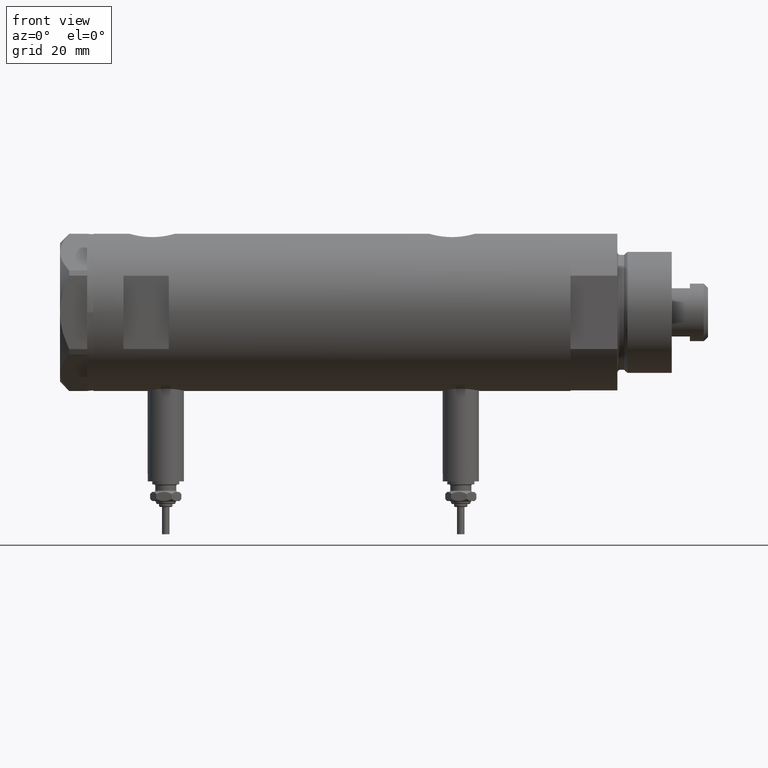
[diagram: clean part render]
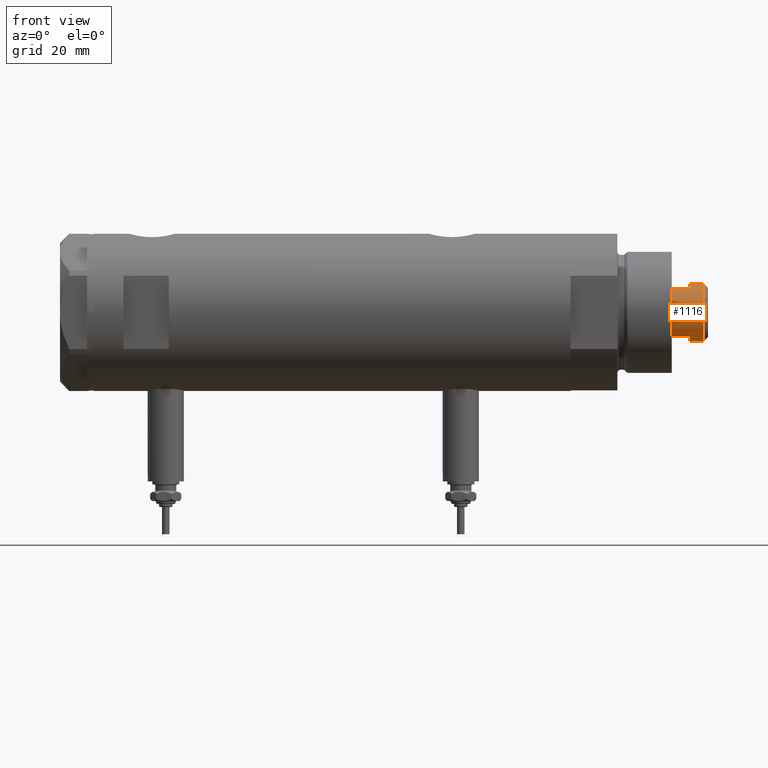
[diagram: same view with one face highlighted and labeled with its STEP entity id]
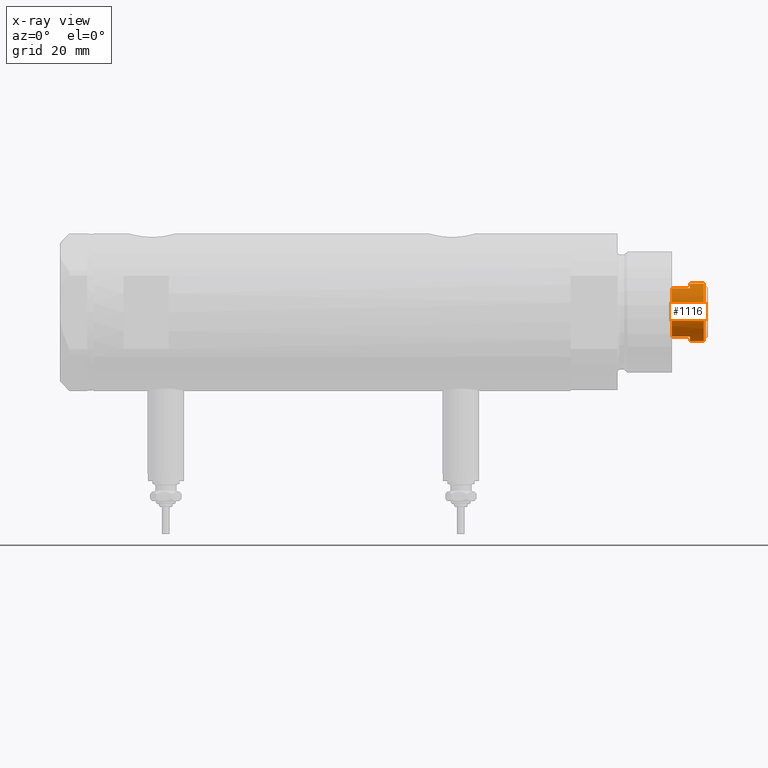
[diagram: x-ray of the same camera — body ghosted, the highlighted face saturated]
A machine part, front view. The second image highlights one B-rep face of the part: STEP entity #1116.
The next image is the same camera in x-ray: the body ghosted, the highlighted face saturated — about 0% of this face is hidden behind the body in this view.
In plain terms, the highlighted cylindrical surface (edge-blend (fillet) strip) has radius 9.5 mm, axis along (-1, -0, 0).
Its self-contained STEP definition (entity closure, byte-faithful):
#47 = CIRCLE ( 'NONE', #4362, 9.500000000000001776 ) ;
#242 = CARTESIAN_POINT ( 'NONE',  ( -7.982950582334827239, -5.149999999999967493, 167.5999999999999943 ) ) ;
#363 = LINE ( 'NONE', #473, #3661 ) ;
#380 = CARTESIAN_POINT ( 'NONE',  ( 0.000000000000000000, 0.000000000000000000, 173.5999999999999943 ) ) ;
#389 = ORIENTED_EDGE ( 'NONE', *, *, #572, .T. ) ;
#473 = CARTESIAN_POINT ( 'NONE',  ( 7.982950582334832568, -5.149999999999997691, 173.5999999999999943 ) ) ;
#548 = DIRECTION ( 'NONE',  ( -0.000000000000000000, -0.000000000000000000, -1.000000000000000000 ) ) ;
#572 = EDGE_CURVE ( 'NONE', #3145, #4906, #2287, .T. ) ;
#620 = VERTEX_POINT ( 'NONE', #1988 ) ;
#662 = AXIS2_PLACEMENT_3D ( 'NONE', #3554, #5022, #5980 ) ;
#860 = CARTESIAN_POINT ( 'NONE',  ( -9.500000000000001776, 0.000000000000000000, 178.2000000000000455 ) ) ;
#994 = CARTESIAN_POINT ( 'NONE',  ( 0.000000000000000000, 0.000000000000000000, 167.5999999999999943 ) ) ;
#1116 = ADVANCED_FACE ( 'NONE', ( #4014 ), #4046, .T. ) ;
#1140 = CARTESIAN_POINT ( 'NONE',  ( 0.000000000000000000, 0.000000000000000000, 178.2000000000000455 ) ) ;
#1231 = VERTEX_POINT ( 'NONE', #5099 ) ;
#1326 = CARTESIAN_POINT ( 'NONE',  ( -9.500000000000001776, 0.000000000000000000, 173.5999999999999943 ) ) ;
#1386 = VECTOR ( 'NONE', #3737, 1000.000000000000000 ) ;
#1455 = AXIS2_PLACEMENT_3D ( 'NONE', #994, #4792, #4404 ) ;
#1463 = ORIENTED_EDGE ( 'NONE', *, *, #3359, .T. ) ;
#1564 = AXIS2_PLACEMENT_3D ( 'NONE', #2534, #548, #2497 ) ;
#1719 = EDGE_LOOP ( 'NONE', ( #4960, #6037, #6236, #1463, #5319, #389, #5680, #3245 ) ) ;
#1840 = VERTEX_POINT ( 'NONE', #860 ) ;
#1988 = CARTESIAN_POINT ( 'NONE',  ( 9.500000000000001776, 1.163414459189985682E-15, 178.2000000000000455 ) ) ;
#2274 = EDGE_CURVE ( 'NONE', #1231, #3179, #3416, .T. ) ;
#2287 = CIRCLE ( 'NONE', #1455, 9.500000000000001776 ) ;
#2426 = LINE ( 'NONE', #4393, #3443 ) ;
#2497 = DIRECTION ( 'NONE',  ( -1.000000000000000000, 0.000000000000000000, 0.000000000000000000 ) ) ;
#2534 = CARTESIAN_POINT ( 'NONE',  ( 0.000000000000000000, 0.000000000000000000, 173.5999999999999943 ) ) ;
#2681 = EDGE_CURVE ( 'NONE', #620, #1840, #47, .T. ) ;
#2807 = CARTESIAN_POINT ( 'NONE',  ( -9.500000000000000000, 0.000000000000000000, 173.5999999999999943 ) ) ;
#3145 = VERTEX_POINT ( 'NONE', #242 ) ;
#3147 = LINE ( 'NONE', #6058, #1386 ) ;
#3179 = VERTEX_POINT ( 'NONE', #5206 ) ;
#3188 = EDGE_CURVE ( 'NONE', #3696, #3145, #3147, .T. ) ;
#3245 = ORIENTED_EDGE ( 'NONE', *, *, #2274, .T. ) ;
#3359 = EDGE_CURVE ( 'NONE', #5969, #3696, #5639, .T. ) ;
#3416 = CIRCLE ( 'NONE', #662, 9.500000000000000000 ) ;
#3443 = VECTOR ( 'NONE', #5842, 1000.000000000000000 ) ;
#3554 = CARTESIAN_POINT ( 'NONE',  ( 0.000000000000000000, 0.000000000000000000, 173.5999999999999943 ) ) ;
#3661 = VECTOR ( 'NONE', #4277, 1000.000000000000000 ) ;
#3696 = VERTEX_POINT ( 'NONE', #3801 ) ;
#3710 = EDGE_CURVE ( 'NONE', #1840, #5969, #6313, .T. ) ;
#3737 = DIRECTION ( 'NONE',  ( -0.000000000000000000, -0.000000000000000000, -1.000000000000000000 ) ) ;
#3801 = CARTESIAN_POINT ( 'NONE',  ( -7.982950582334825462, -5.150000000000003020, 173.5999999999999943 ) ) ;
#4014 = FACE_OUTER_BOUND ( 'NONE', #1719, .T. ) ;
#4046 = CYLINDRICAL_SURFACE ( 'NONE', #1564, 9.500000000000001776 ) ;
#4160 = CARTESIAN_POINT ( 'NONE',  ( 7.982950582334832568, -5.149999999999958611, 167.5999999999999943 ) ) ;
#4264 = EDGE_CURVE ( 'NONE', #1231, #4906, #363, .T. ) ;
#4266 = EDGE_CURVE ( 'NONE', #620, #3179, #2426, .T. ) ;
#4277 = DIRECTION ( 'NONE',  ( -0.000000000000000000, -0.000000000000000000, -1.000000000000000000 ) ) ;
#4362 = AXIS2_PLACEMENT_3D ( 'NONE', #1140, #6036, #4551 ) ;
#4393 = CARTESIAN_POINT ( 'NONE',  ( 9.500000000000001776, 1.163414459189985682E-15, 173.5999999999999943 ) ) ;
#4404 = DIRECTION ( 'NONE',  ( 1.000000000000000000, 0.000000000000000000, 0.000000000000000000 ) ) ;
#4551 = DIRECTION ( 'NONE',  ( 1.000000000000000000, 0.000000000000000000, 0.000000000000000000 ) ) ;
#4792 = DIRECTION ( 'NONE',  ( 0.000000000000000000, 0.000000000000000000, 1.000000000000000000 ) ) ;
#4906 = VERTEX_POINT ( 'NONE', #4160 ) ;
#4960 = ORIENTED_EDGE ( 'NONE', *, *, #4266, .F. ) ;
#5022 = DIRECTION ( 'NONE',  ( 0.000000000000000000, 0.000000000000000000, 1.000000000000000000 ) ) ;
#5099 = CARTESIAN_POINT ( 'NONE',  ( 7.982950582334832568, -5.149999999999997691, 173.5999999999999943 ) ) ;
#5206 = CARTESIAN_POINT ( 'NONE',  ( 9.500000000000000000, 1.163414459189985485E-15, 173.5999999999999943 ) ) ;
#5295 = DIRECTION ( 'NONE',  ( -0.000000000000000000, -0.000000000000000000, -1.000000000000000000 ) ) ;
#5319 = ORIENTED_EDGE ( 'NONE', *, *, #3188, .T. ) ;
#5528 = AXIS2_PLACEMENT_3D ( 'NONE', #380, #6235, #5749 ) ;
#5639 = CIRCLE ( 'NONE', #5528, 9.500000000000000000 ) ;
#5680 = ORIENTED_EDGE ( 'NONE', *, *, #4264, .F. ) ;
#5749 = DIRECTION ( 'NONE',  ( 1.000000000000000000, 0.000000000000000000, 0.000000000000000000 ) ) ;
#5842 = DIRECTION ( 'NONE',  ( -0.000000000000000000, -0.000000000000000000, -1.000000000000000000 ) ) ;
#5941 = VECTOR ( 'NONE', #5295, 1000.000000000000000 ) ;
#5969 = VERTEX_POINT ( 'NONE', #2807 ) ;
#5980 = DIRECTION ( 'NONE',  ( 1.000000000000000000, 0.000000000000000000, 0.000000000000000000 ) ) ;
#6036 = DIRECTION ( 'NONE',  ( 0.000000000000000000, 0.000000000000000000, -1.000000000000000000 ) ) ;
#6037 = ORIENTED_EDGE ( 'NONE', *, *, #2681, .T. ) ;
#6058 = CARTESIAN_POINT ( 'NONE',  ( -7.982950582334829015, -5.150000000000001243, 173.5999999999999943 ) ) ;
#6235 = DIRECTION ( 'NONE',  ( 0.000000000000000000, 0.000000000000000000, 1.000000000000000000 ) ) ;
#6236 = ORIENTED_EDGE ( 'NONE', *, *, #3710, .T. ) ;
#6313 = LINE ( 'NONE', #1326, #5941 ) ;